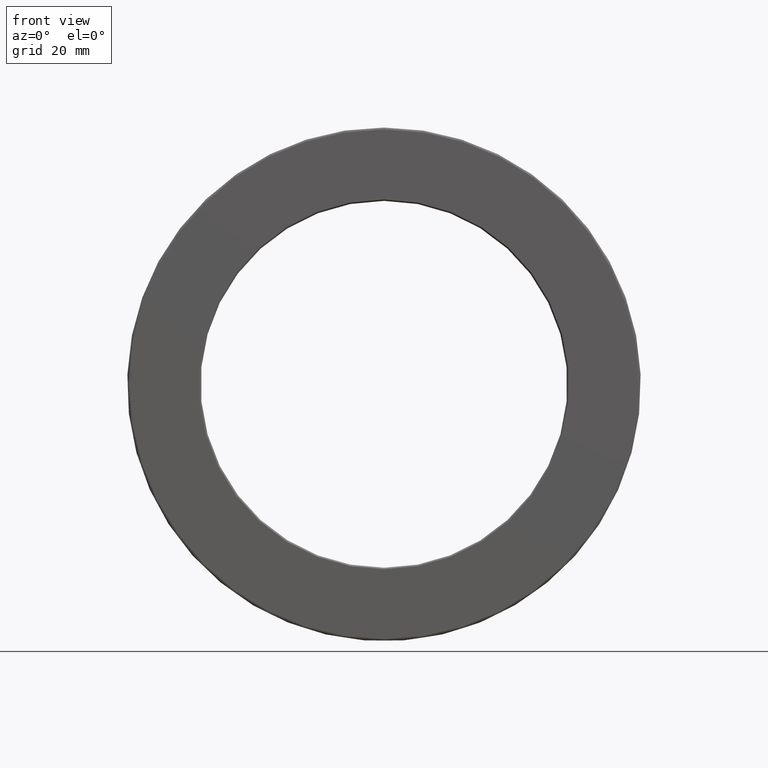
[diagram: clean part render]
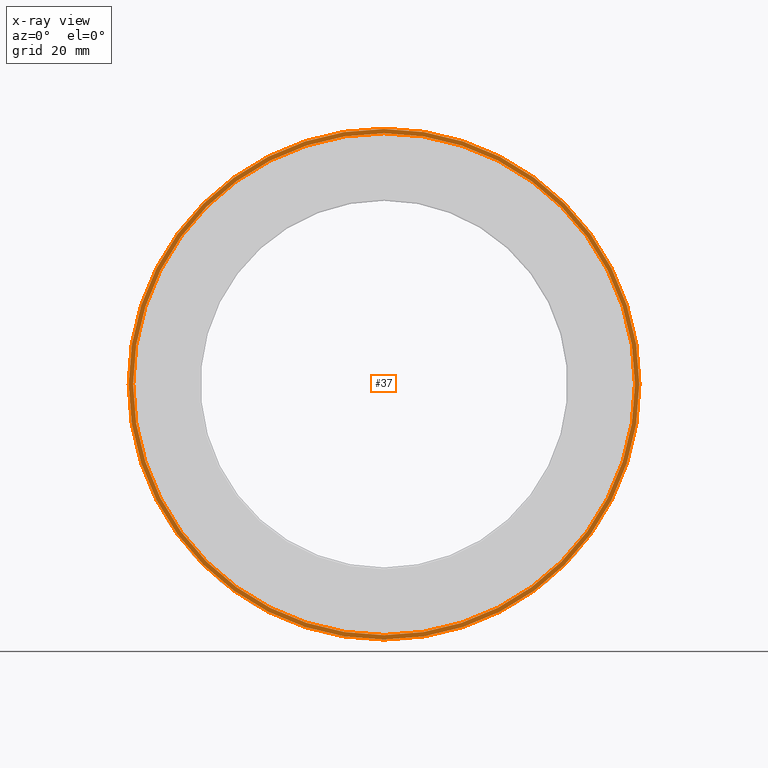
[diagram: x-ray — body ghosted, one internal face saturated and labeled with its STEP entity id]
A machine part, front view, then the same camera in x-ray: the body is ghosted and one INTERNAL B-rep face — a face not visible from any outside direction — is saturated and labeled: STEP entity #37.
In plain terms, the highlighted planar face has unit normal (-0, 1, 0).
Its self-contained STEP definition (entity closure, byte-faithful):
#22 = EDGE_CURVE ( 'NONE', #35, #35, #323, .T. ) ;
#35 = VERTEX_POINT ( 'NONE', #38 ) ;
#37 = ADVANCED_FACE ( 'NONE', ( #157, #339 ), #197, .F. ) ;
#38 = CARTESIAN_POINT ( 'NONE',  ( 0.0000000000000000000, 1.215000000000000500, 3.419999999999999000 ) ) ;
#107 = CARTESIAN_POINT ( 'NONE',  ( 0.0000000000000000000, 1.215000000000000500, 3.480000000000000000 ) ) ;
#145 = EDGE_CURVE ( 'NONE', #201, #201, #594, .T. ) ;
#157 = FACE_OUTER_BOUND ( 'NONE', #395, .T. ) ;
#177 = AXIS2_PLACEMENT_3D ( 'NONE', #333, #279, #371 ) ;
#182 = ORIENTED_EDGE ( 'NONE', *, *, #145, .F. ) ;
#197 = PLANE ( 'NONE',  #353 ) ;
#201 = VERTEX_POINT ( 'NONE', #107 ) ;
#258 = CARTESIAN_POINT ( 'NONE',  ( 0.0000000000000000000, 1.215000000000000500, 0.0000000000000000000 ) ) ;
#277 = EDGE_LOOP ( 'NONE', ( #571 ) ) ;
#279 = DIRECTION ( 'NONE',  ( -0.0000000000000000000, 1.000000000000000000, -0.0000000000000000000 ) ) ;
#323 = CIRCLE ( 'NONE', #177, 3.419999999999999000 ) ;
#333 = CARTESIAN_POINT ( 'NONE',  ( 0.0000000000000000000, 1.215000000000000500, 0.0000000000000000000 ) ) ;
#339 = FACE_BOUND ( 'NONE', #277, .T. ) ;
#353 = AXIS2_PLACEMENT_3D ( 'NONE', #516, #378, #465 ) ;
#371 = DIRECTION ( 'NONE',  ( 0.0000000000000000000, 0.0000000000000000000, 1.000000000000000000 ) ) ;
#378 = DIRECTION ( 'NONE',  ( -0.0000000000000000000, 1.000000000000000000, 0.0000000000000000000 ) ) ;
#395 = EDGE_LOOP ( 'NONE', ( #182 ) ) ;
#422 = AXIS2_PLACEMENT_3D ( 'NONE', #258, #525, #484 ) ;
#465 = DIRECTION ( 'NONE',  ( 0.0000000000000000000, 0.0000000000000000000, 1.000000000000000000 ) ) ;
#484 = DIRECTION ( 'NONE',  ( 0.0000000000000000000, 0.0000000000000000000, 1.000000000000000000 ) ) ;
#516 = CARTESIAN_POINT ( 'NONE',  ( 0.0000000000000000000, 1.215000000000000500, 0.0000000000000000000 ) ) ;
#525 = DIRECTION ( 'NONE',  ( -0.0000000000000000000, 1.000000000000000000, -0.0000000000000000000 ) ) ;
#571 = ORIENTED_EDGE ( 'NONE', *, *, #22, .T. ) ;
#594 = CIRCLE ( 'NONE', #422, 3.480000000000000000 ) ;